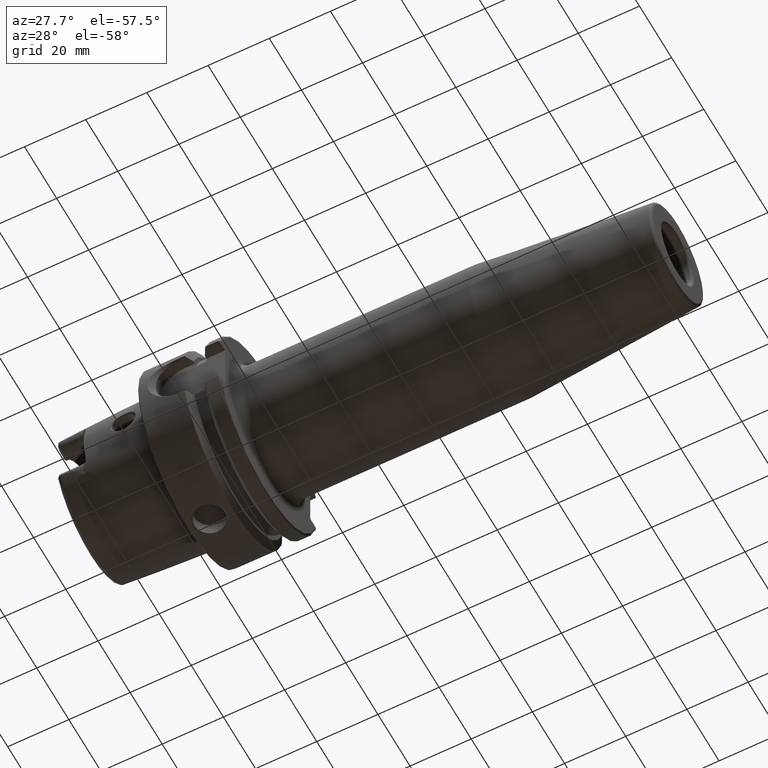
[diagram: clean part render]
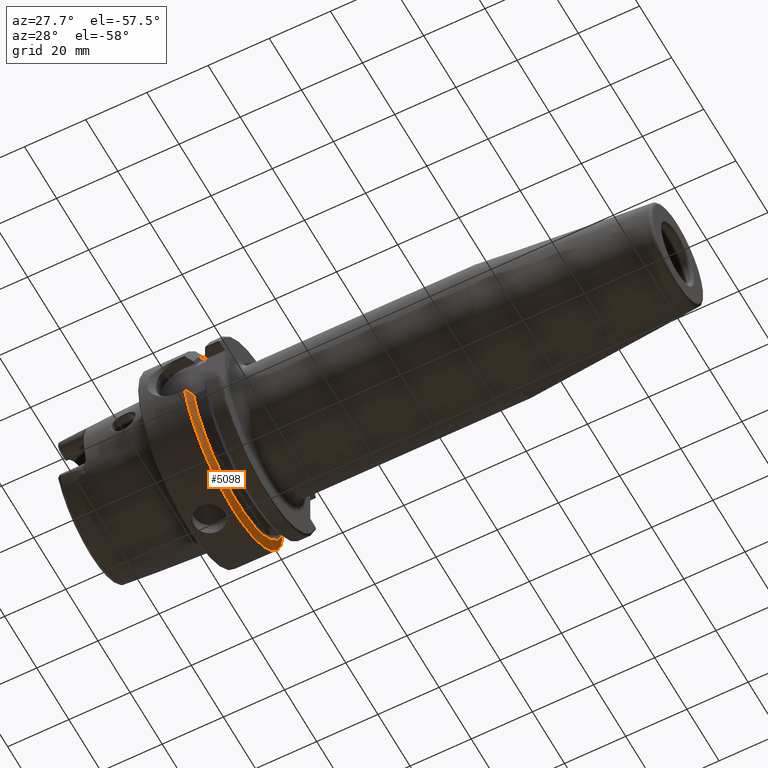
[diagram: same view with one face highlighted and labeled with its STEP entity id]
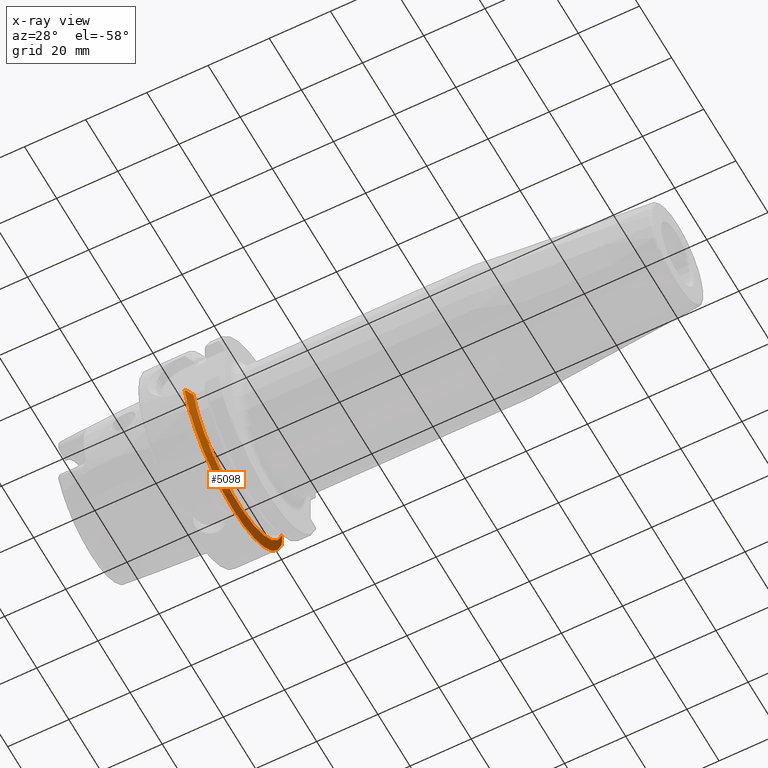
[diagram: x-ray of the same camera — body ghosted, the highlighted face saturated]
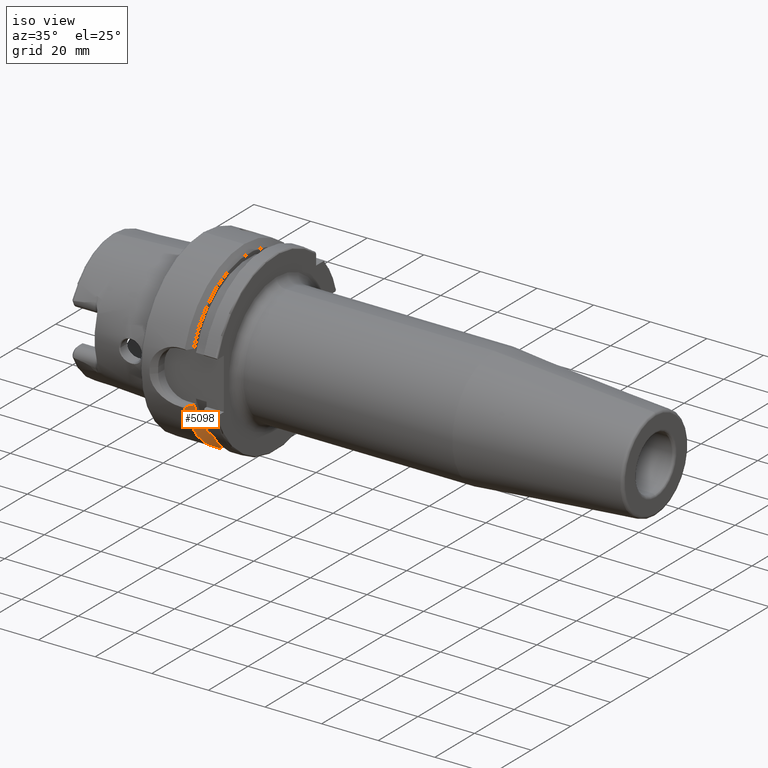
[diagram: same view with one face highlighted and labeled with its STEP entity id]
A machine part, auxiliary view. The second image highlights one B-rep face of the part: STEP entity #5098.
The next image is the same camera in x-ray: the body ghosted, the highlighted face saturated — about 0% of this face is hidden behind the body in this view.
A second angle (iso view) of the same face is appended — the face is thin or edge-on in the first view.
In plain terms, the highlighted conical surface has half-angle 60 deg.
Its self-contained STEP definition (entity closure, byte-faithful):
#773=CARTESIAN_POINT('',(1.462250090457E1,0.E0,0.E0));
#774=DIRECTION('',(1.E0,0.E0,0.E0));
#775=DIRECTION('',(0.E0,-9.547030571660E-1,-2.975602000232E-1));
#776=AXIS2_PLACEMENT_3D('',#773,#774,#775);
#844=CARTESIAN_POINT('',(1.462250090457E1,0.E0,0.E0));
#845=DIRECTION('',(1.E0,0.E0,0.E0));
#846=DIRECTION('',(0.E0,0.E0,-1.E0));
#847=AXIS2_PLACEMENT_3D('',#844,#845,#846);
#1935=CARTESIAN_POINT('',(1.462250090457E1,3.030257052423E1,-8.602570524226E0));
#1936=CARTESIAN_POINT('',(1.467078948999E1,3.023485181707E1,-8.534851817065E0));
#1937=CARTESIAN_POINT('',(1.476688260126E1,3.009992541680E1,-8.399925416799E0));
#1938=CARTESIAN_POINT('',(1.490956824516E1,2.989907088203E1,-8.199070882028E0));
#1939=CARTESIAN_POINT('',(1.500372551638E1,2.976618689262E1,-8.066186892620E0));
#1940=CARTESIAN_POINT('',(1.505056223932E1,2.97E1,-8.E0));
#1942=CARTESIAN_POINT('',(1.489172432548E1,-2.97E1,-9.E0));
#1943=CARTESIAN_POINT('',(1.484725659362E1,-2.976176295487E1,
-9.061762954873E0));
#1944=CARTESIAN_POINT('',(1.475791820907E1,-2.988571693019E1,
-9.185716930191E0));
#1945=CARTESIAN_POINT('',(1.466777422758E1,-3.001052712454E1,
-9.310527124543E0));
#1946=CARTESIAN_POINT('',(1.462250090457E1,-3.007314630073E1,
-9.373146300730E0));
#1948=CARTESIAN_POINT('',(1.489172432548E1,-2.97E1,-9.E0));
#1949=CARTESIAN_POINT('',(1.503259110226E1,-2.944505518706E1,-9.E0));
#1950=CARTESIAN_POINT('',(1.531177223422E1,-2.893923282224E1,-9.E0));
#1951=CARTESIAN_POINT('',(1.572283541904E1,-2.819275590813E1,-9.E0));
#1952=CARTESIAN_POINT('',(1.599179761986E1,-2.770314203488E1,-9.E0));
#1953=CARTESIAN_POINT('',(1.6125E1,-2.746035349595E1,-9.E0));
#1955=CARTESIAN_POINT('',(1.6125E1,0.E0,0.E0));
#1956=DIRECTION('',(1.E0,0.E0,0.E0));
#1957=DIRECTION('',(0.E0,-9.502643112990E-1,-3.114445996827E-1));
#1958=AXIS2_PLACEMENT_3D('',#1955,#1956,#1957);
#1960=CARTESIAN_POINT('',(1.6125E1,2.776816547996E1,-8.E0));
#1961=CARTESIAN_POINT('',(1.600834584368E1,2.797843452792E1,-8.E0));
#1962=CARTESIAN_POINT('',(1.577321590256E1,2.840189003060E1,-8.E0));
#1963=CARTESIAN_POINT('',(1.541507867144E1,2.904580805274E1,-8.E0));
#1964=CARTESIAN_POINT('',(1.517267317071E1,2.948095924087E1,-8.E0));
#1965=CARTESIAN_POINT('',(1.505056223932E1,2.97E1,-8.E0));
#2605=CARTESIAN_POINT('',(1.6125E1,2.776816547996E1,-8.E0));
#2606=VERTEX_POINT('',#2605);
#2637=CARTESIAN_POINT('',(1.6125E1,-2.746035349595E1,-9.E0));
#2638=VERTEX_POINT('',#2637);
#2834=CARTESIAN_POINT('',(1.462250090457E1,0.E0,-3.15E1));
#2835=VERTEX_POINT('',#2834);
#2859=CARTESIAN_POINT('',(1.462250090457E1,-3.007314630073E1,
-9.373146300730E0));
#2861=VERTEX_POINT('',#2859);
#2867=VERTEX_POINT('',#1942);
#2886=CARTESIAN_POINT('',(1.462250090457E1,3.030257052423E1,-8.602570524226E0));
#2887=VERTEX_POINT('',#2886);
#2889=VERTEX_POINT('',#1940);
#5080=CARTESIAN_POINT('',(1.537375045228E1,0.E0,0.E0));
#5081=DIRECTION('',(-1.E0,0.E0,0.E0));
#5082=DIRECTION('',(0.E0,0.E0,-1.E0));
#5083=AXIS2_PLACEMENT_3D('',#5080,#5081,#5082);
#5084=CONICAL_SURFACE('',#5083,3.019879765E1,5.999999931725E1);
#5085=ORIENTED_EDGE('',*,*,#3875,.F.);
#5086=ORIENTED_EDGE('',*,*,#3910,.F.);
#5087=ORIENTED_EDGE('',*,*,#3857,.F.);
#5089=ORIENTED_EDGE('',*,*,#5088,.F.);
#5091=ORIENTED_EDGE('',*,*,#5090,.T.);
#5093=ORIENTED_EDGE('',*,*,#5092,.T.);
#5095=ORIENTED_EDGE('',*,*,#5094,.T.);
#5096=EDGE_LOOP('',(#5085,#5086,#5087,#5089,#5091,#5093,#5095));
#5097=FACE_OUTER_BOUND('',#5096,.F.);
#5098=ADVANCED_FACE('',(#5097),#5084,.T.);
#777=CIRCLE('',#776,3.15E1);
#848=CIRCLE('',#847,3.15E1);
#1941=B_SPLINE_CURVE_WITH_KNOTS('',3,(#1935,#1936,#1937,#1938,#1939,#1940),
.UNSPECIFIED.,.F.,.F.,(4,1,1,4),(0.E0,3.333333333333E-1,6.666666666667E-1,1.E0),
.UNSPECIFIED.);
#1947=B_SPLINE_CURVE_WITH_KNOTS('',3,(#1942,#1943,#1944,#1945,#1946),
.UNSPECIFIED.,.F.,.F.,(4,1,4),(0.E0,5.E-1,1.E0),.UNSPECIFIED.);
#1954=B_SPLINE_CURVE_WITH_KNOTS('',3,(#1948,#1949,#1950,#1951,#1952,#1953),
.UNSPECIFIED.,.F.,.F.,(4,1,1,4),(0.E0,3.333333333333E-1,6.666666666667E-1,1.E0),
.UNSPECIFIED.);
#1959=CIRCLE('',#1958,2.88975953E1);
#1966=B_SPLINE_CURVE_WITH_KNOTS('',3,(#1960,#1961,#1962,#1963,#1964,#1965),
.UNSPECIFIED.,.F.,.F.,(4,1,1,4),(0.E0,3.333333333333E-1,6.666666666667E-1,1.E0),
.UNSPECIFIED.);
#3857=EDGE_CURVE('',#2861,#2835,#777,.T.);
#3875=EDGE_CURVE('',#2887,#2889,#1941,.T.);
#3910=EDGE_CURVE('',#2835,#2887,#848,.T.);
#5088=EDGE_CURVE('',#2867,#2861,#1947,.T.);
#5090=EDGE_CURVE('',#2867,#2638,#1954,.T.);
#5092=EDGE_CURVE('',#2638,#2606,#1959,.T.);
#5094=EDGE_CURVE('',#2606,#2889,#1966,.T.);